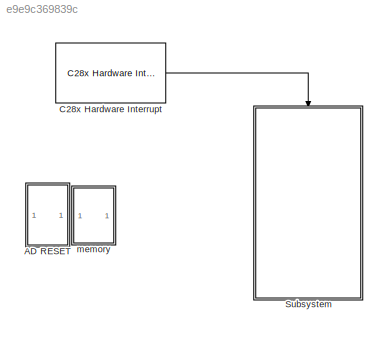
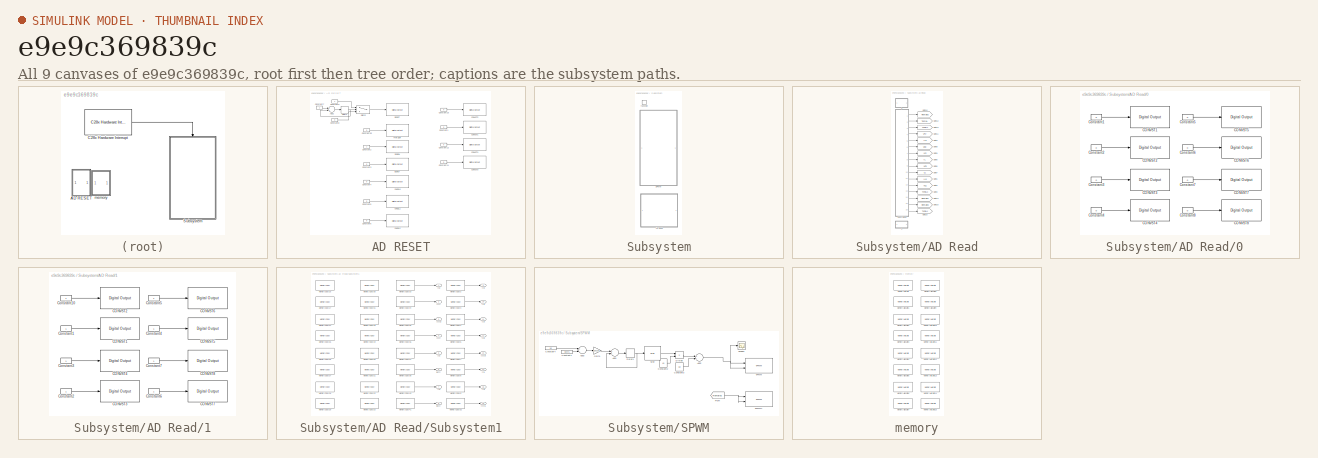
[diagram: thumbnail index - all 9 canvases of the model, root first then tree order]
MODEL slx_e9e9c369839c
KIND model
CONFIG AbsTol = auto
CONFIG EnableMultiTasking = on
CONFIG FixedStep = 1e-5
CONFIG MaxStep = auto
CONFIG MinStep = auto
CONFIG RelTol = 1e-3
CONFIG SampleTimeConstraint = Unconstrained
CONFIG Solver = FixedStepDiscrete
CONFIG SolverName = FixedStepDiscrete
CONFIG StartTime = 0.0
CONFIG StopTime = Inf
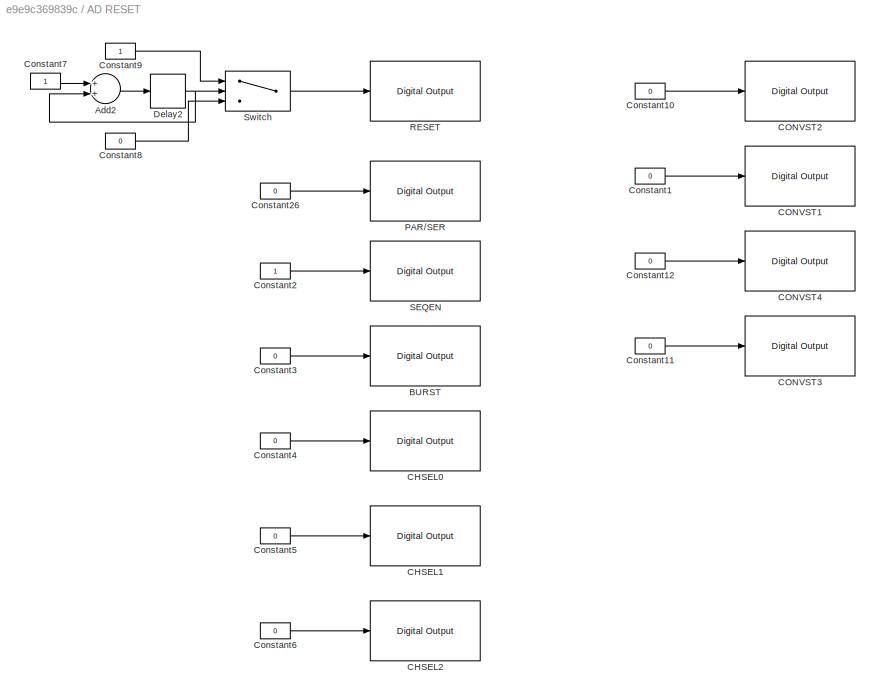
BLOCK [SubSystem] AD RESET
  Ports = []
  RequestExecContextInheritance = off
BLOCK [Sum] AD RESET/Add2
  InputSameDT = off
  OutDataTypeStr = Inherit: Inherit via internal rule
  Ports = [2, 1]
  SaturateOnIntegerOverflow = off
BLOCK [Reference] AD RESET/BURST  REF=c2837xDlib/Digital Output
  Ports = [1]
  SourceBlock = c2837xDlib/Digital Output
  SourceProductBaseCode = TIC2000
  SourceProductName = Embedded Coder Support Package for Texas Instruments C2000 Processors
  SourceType = F2837x GPIO Digital Output
  UserDataPersistent = on
BLOCK [Reference] AD RESET/CHSEL0  REF=c2837xDlib/Digital Output
  Ports = [1]
  SourceBlock = c2837xDlib/Digital Output
  SourceProductBaseCode = TIC2000
  SourceProductName = Embedded Coder Support Package for Texas Instruments C2000 Processors
  SourceType = F2837x GPIO Digital Output
  UserDataPersistent = on
BLOCK [Reference] AD RESET/CHSEL1  REF=c2837xDlib/Digital Output
  Ports = [1]
  SourceBlock = c2837xDlib/Digital Output
  SourceProductBaseCode = TIC2000
  SourceProductName = Embedded Coder Support Package for Texas Instruments C2000 Processors
  SourceType = F2837x GPIO Digital Output
  UserDataPersistent = on
BLOCK [Reference] AD RESET/CHSEL2  REF=c2837xDlib/Digital Output
  Ports = [1]
  SourceBlock = c2837xDlib/Digital Output
  SourceProductBaseCode = TIC2000
  SourceProductName = Embedded Coder Support Package for Texas Instruments C2000 Processors
  SourceType = F2837x GPIO Digital Output
  UserDataPersistent = on
BLOCK [Reference] AD RESET/CONVST1  REF=c2837xDlib/Digital Output
  Ports = [1]
  SourceBlock = c2837xDlib/Digital Output
  SourceProductBaseCode = TIC2000
  SourceProductName = Embedded Coder Support Package for Texas Instruments C2000 Processors
  SourceType = F2837x GPIO Digital Output
  UserDataPersistent = on
BLOCK [Reference] AD RESET/CONVST2  REF=c2837xDlib/Digital Output
  Ports = [1]
  SourceBlock = c2837xDlib/Digital Output
  SourceProductBaseCode = TIC2000
  SourceProductName = Embedded Coder Support Package for Texas Instruments C2000 Processors
  SourceType = F2837x GPIO Digital Output
  UserDataPersistent = on
BLOCK [Reference] AD RESET/CONVST3  REF=c2837xDlib/Digital Output
  Ports = [1]
  SourceBlock = c2837xDlib/Digital Output
  SourceProductBaseCode = TIC2000
  SourceProductName = Embedded Coder Support Package for Texas Instruments C2000 Processors
  SourceType = F2837x GPIO Digital Output
  UserDataPersistent = on
BLOCK [Reference] AD RESET/CONVST4  REF=c2837xDlib/Digital Output
  Ports = [1]
  SourceBlock = c2837xDlib/Digital Output
  SourceProductBaseCode = TIC2000
  SourceProductName = Embedded Coder Support Package for Texas Instruments C2000 Processors
  SourceType = F2837x GPIO Digital Output
  UserDataPersistent = on
BLOCK [Constant] AD RESET/Constant1
  OutDataTypeStr = boolean
  Value = 0
BLOCK [Constant] AD RESET/Constant10
  OutDataTypeStr = boolean
  Value = 0
BLOCK [Constant] AD RESET/Constant11
  OutDataTypeStr = boolean
  Value = 0
BLOCK [Constant] AD RESET/Constant12
  OutDataTypeStr = boolean
  Value = 0
BLOCK [Constant] AD RESET/Constant2
  OutDataTypeStr = boolean
BLOCK [Constant] AD RESET/Constant26
  OutDataTypeStr = boolean
  Value = 0
BLOCK [Constant] AD RESET/Constant3
  OutDataTypeStr = boolean
  Value = 0
BLOCK [Constant] AD RESET/Constant4
  OutDataTypeStr = boolean
  Value = 0
BLOCK [Constant] AD RESET/Constant5
  OutDataTypeStr = boolean
  Value = 0
BLOCK [Constant] AD RESET/Constant6
  OutDataTypeStr = boolean
  Value = 0
BLOCK [Constant] AD RESET/Constant7
  OutDataTypeStr = boolean
BLOCK [Constant] AD RESET/Constant8
  OutDataTypeStr = boolean
  Value = 0
BLOCK [Constant] AD RESET/Constant9
  OutDataTypeStr = boolean
BLOCK [Delay] AD RESET/Delay2
  DelayLength = 1
  InputPortMap = u0
  Ports = [1, 1]
BLOCK [Reference] AD RESET/PAR//SER  REF=c2837xDlib/Digital Output
  Ports = [1]
  SourceBlock = c2837xDlib/Digital Output
  SourceProductBaseCode = TIC2000
  SourceProductName = Embedded Coder Support Package for Texas Instruments C2000 Processors
  SourceType = F2837x GPIO Digital Output
  UserDataPersistent = on
BLOCK [Reference] AD RESET/RESET  REF=c2837xDlib/Digital Output
  Ports = [1]
  SourceBlock = c2837xDlib/Digital Output
  SourceProductBaseCode = TIC2000
  SourceProductName = Embedded Coder Support Package for Texas Instruments C2000 Processors
  SourceType = F2837x GPIO Digital Output
  UserDataPersistent = on
BLOCK [Reference] AD RESET/SEQEN  REF=c2837xDlib/Digital Output
  Ports = [1]
  SourceBlock = c2837xDlib/Digital Output
  SourceProductBaseCode = TIC2000
  SourceProductName = Embedded Coder Support Package for Texas Instruments C2000 Processors
  SourceType = F2837x GPIO Digital Output
  UserDataPersistent = on
BLOCK [Switch] AD RESET/Switch
  Criteria = u2 > Threshold
  InputSameDT = off
  SaturateOnIntegerOverflow = off
  Threshold = 50
BLOCK [Reference] C28x Hardware Interrupt  REF=c2000lib/Scheduling/C28x Hardware Interrupt
  Ports = [0, 1]
  SourceBlock = c2000lib/Scheduling/C28x Hardware Interrupt
  SourceProductBaseCode = TIC2000
  SourceProductName = Embedded Coder Support Package for Texas Instruments C2000 Processors
  SourceType = C28x Interrupt Block
BLOCK [SubSystem] Subsystem
  Ports = [0, 0, 0, 1]
  RequestExecContextInheritance = off
BLOCK [SubSystem] Subsystem/AD Read
  Ports = []
  RequestExecContextInheritance = off
BLOCK [SubSystem] Subsystem/AD Read/0
  Ports = []
  RequestExecContextInheritance = off
BLOCK [Reference] Subsystem/AD Read/0/CONVST1  REF=c2837xDlib/Digital Output
  Ports = [1]
  SourceBlock = c2837xDlib/Digital Output
  SourceProductBaseCode = TIC2000
  SourceProductName = Embedded Coder Support Package for Texas Instruments C2000 Processors
  SourceType = F2837x GPIO Digital Output
  UserDataPersistent = on
BLOCK [Reference] Subsystem/AD Read/0/CONVST2  REF=c2837xDlib/Digital Output
  Ports = [1]
  SourceBlock = c2837xDlib/Digital Output
  SourceProductBaseCode = TIC2000
  SourceProductName = Embedded Coder Support Package for Texas Instruments C2000 Processors
  SourceType = F2837x GPIO Digital Output
  UserDataPersistent = on
BLOCK [Reference] Subsystem/AD Read/0/CONVST3  REF=c2837xDlib/Digital Output
  Ports = [1]
  SourceBlock = c2837xDlib/Digital Output
  SourceProductBaseCode = TIC2000
  SourceProductName = Embedded Coder Support Package for Texas Instruments C2000 Processors
  SourceType = F2837x GPIO Digital Output
  UserDataPersistent = on
BLOCK [Reference] Subsystem/AD Read/0/CONVST4  REF=c2837xDlib/Digital Output
  Ports = [1]
  SourceBlock = c2837xDlib/Digital Output
  SourceProductBaseCode = TIC2000
  SourceProductName = Embedded Coder Support Package for Texas Instruments C2000 Processors
  SourceType = F2837x GPIO Digital Output
  UserDataPersistent = on
BLOCK [Reference] Subsystem/AD Read/0/CONVST5  REF=c2837xDlib/Digital Output
  Ports = [1]
  SourceBlock = c2837xDlib/Digital Output
  SourceProductBaseCode = TIC2000
  SourceProductName = Embedded Coder Support Package for Texas Instruments C2000 Processors
  SourceType = F2837x GPIO Digital Output
  UserDataPersistent = on
BLOCK [Reference] Subsystem/AD Read/0/CONVST6  REF=c2837xDlib/Digital Output
  Ports = [1]
  SourceBlock = c2837xDlib/Digital Output
  SourceProductBaseCode = TIC2000
  SourceProductName = Embedded Coder Support Package for Texas Instruments C2000 Processors
  SourceType = F2837x GPIO Digital Output
  UserDataPersistent = on
BLOCK [Reference] Subsystem/AD Read/0/CONVST7  REF=c2837xDlib/Digital Output
  Ports = [1]
  SourceBlock = c2837xDlib/Digital Output
  SourceProductBaseCode = TIC2000
  SourceProductName = Embedded Coder Support Package for Texas Instruments C2000 Processors
  SourceType = F2837x GPIO Digital Output
  UserDataPersistent = on
BLOCK [Reference] Subsystem/AD Read/0/CONVST8  REF=c2837xDlib/Digital Output
  Ports = [1]
  SourceBlock = c2837xDlib/Digital Output
  SourceProductBaseCode = TIC2000
  SourceProductName = Embedded Coder Support Package for Texas Instruments C2000 Processors
  SourceType = F2837x GPIO Digital Output
  UserDataPersistent = on
BLOCK [Constant] Subsystem/AD Read/0/Constant1
  OutDataTypeStr = boolean
  Value = 0
BLOCK [Constant] Subsystem/AD Read/0/Constant2
  OutDataTypeStr = boolean
  Value = 0
BLOCK [Constant] Subsystem/AD Read/0/Constant3
  OutDataTypeStr = boolean
  Value = 0
BLOCK [Constant] Subsystem/AD Read/0/Constant4
  OutDataTypeStr = boolean
  Value = 0
BLOCK [Constant] Subsystem/AD Read/0/Constant5
  OutDataTypeStr = boolean
  Value = 0
BLOCK [Constant] Subsystem/AD Read/0/Constant6
  OutDataTypeStr = boolean
  Value = 0
BLOCK [Constant] Subsystem/AD Read/0/Constant7
  OutDataTypeStr = boolean
  Value = 0
BLOCK [Constant] Subsystem/AD Read/0/Constant8
  OutDataTypeStr = boolean
  Value = 0
BLOCK [SubSystem] Subsystem/AD Read/1
  Ports = []
  RequestExecContextInheritance = off
BLOCK [Reference] Subsystem/AD Read/1/CONVST1  REF=c2837xDlib/Digital Output
  Ports = [1]
  SourceBlock = c2837xDlib/Digital Output
  SourceProductBaseCode = TIC2000
  SourceProductName = Embedded Coder Support Package for Texas Instruments C2000 Processors
  SourceType = F2837x GPIO Digital Output
  UserDataPersistent = on
BLOCK [Reference] Subsystem/AD Read/1/CONVST2  REF=c2837xDlib/Digital Output
  Ports = [1]
  SourceBlock = c2837xDlib/Digital Output
  SourceProductBaseCode = TIC2000
  SourceProductName = Embedded Coder Support Package for Texas Instruments C2000 Processors
  SourceType = F2837x GPIO Digital Output
  UserDataPersistent = on
BLOCK [Reference] Subsystem/AD Read/1/CONVST3  REF=c2837xDlib/Digital Output
  Ports = [1]
  SourceBlock = c2837xDlib/Digital Output
  SourceProductBaseCode = TIC2000
  SourceProductName = Embedded Coder Support Package for Texas Instruments C2000 Processors
  SourceType = F2837x GPIO Digital Output
  UserDataPersistent = on
BLOCK [Reference] Subsystem/AD Read/1/CONVST4  REF=c2837xDlib/Digital Output
  Ports = [1]
  SourceBlock = c2837xDlib/Digital Output
  SourceProductBaseCode = TIC2000
  SourceProductName = Embedded Coder Support Package for Texas Instruments C2000 Processors
  SourceType = F2837x GPIO Digital Output
  UserDataPersistent = on
BLOCK [Reference] Subsystem/AD Read/1/CONVST5  REF=c2837xDlib/Digital Output
  Ports = [1]
  SourceBlock = c2837xDlib/Digital Output
  SourceProductBaseCode = TIC2000
  SourceProductName = Embedded Coder Support Package for Texas Instruments C2000 Processors
  SourceType = F2837x GPIO Digital Output
  UserDataPersistent = on
BLOCK [Reference] Subsystem/AD Read/1/CONVST6  REF=c2837xDlib/Digital Output
  Ports = [1]
  SourceBlock = c2837xDlib/Digital Output
  SourceProductBaseCode = TIC2000
  SourceProductName = Embedded Coder Support Package for Texas Instruments C2000 Processors
  SourceType = F2837x GPIO Digital Output
  UserDataPersistent = on
BLOCK [Reference] Subsystem/AD Read/1/CONVST7  REF=c2837xDlib/Digital Output
  Ports = [1]
  SourceBlock = c2837xDlib/Digital Output
  SourceProductBaseCode = TIC2000
  SourceProductName = Embedded Coder Support Package for Texas Instruments C2000 Processors
  SourceType = F2837x GPIO Digital Output
  UserDataPersistent = on
BLOCK [Reference] Subsystem/AD Read/1/CONVST8  REF=c2837xDlib/Digital Output
  Ports = [1]
  SourceBlock = c2837xDlib/Digital Output
  SourceProductBaseCode = TIC2000
  SourceProductName = Embedded Coder Support Package for Texas Instruments C2000 Processors
  SourceType = F2837x GPIO Digital Output
  UserDataPersistent = on
BLOCK [Constant] Subsystem/AD Read/1/Constant1
  OutDataTypeStr = boolean
BLOCK [Constant] Subsystem/AD Read/1/Constant10
  OutDataTypeStr = boolean
BLOCK [Constant] Subsystem/AD Read/1/Constant2
  OutDataTypeStr = boolean
BLOCK [Constant] Subsystem/AD Read/1/Constant3
  OutDataTypeStr = boolean
BLOCK [Constant] Subsystem/AD Read/1/Constant4
  OutDataTypeStr = boolean
BLOCK [Constant] Subsystem/AD Read/1/Constant5
  OutDataTypeStr = boolean
BLOCK [Constant] Subsystem/AD Read/1/Constant6
  OutDataTypeStr = boolean
BLOCK [Constant] Subsystem/AD Read/1/Constant7
  OutDataTypeStr = boolean
BLOCK [Goto] Subsystem/AD Read/Goto1
  GotoTag = IL3
BLOCK [Goto] Subsystem/AD Read/Goto10
  GotoTag = Remain2
BLOCK [Goto] Subsystem/AD Read/Goto11
  GotoTag = VPV
BLOCK [Goto] Subsystem/AD Read/Goto12
  GotoTag = TempL
BLOCK [Goto] Subsystem/AD Read/Goto13
  GotoTag = TempL2
BLOCK [Goto] Subsystem/AD Read/Goto14
  GotoTag = Remain1
BLOCK [Goto] Subsystem/AD Read/Goto15
  GotoTag = Remain3
BLOCK [Goto] Subsystem/AD Read/Goto16
  GotoTag = TempL1
BLOCK [Goto] Subsystem/AD Read/Goto2
  GotoTag = VC1
BLOCK [Goto] Subsystem/AD Read/Goto3
  GotoTag = TempL3
BLOCK [Goto] Subsystem/AD Read/Goto4
  GotoTag = IL2
BLOCK [Goto] Subsystem/AD Read/Goto5
  GotoTag = IL
BLOCK [Goto] Subsystem/AD Read/Goto6
  GotoTag = VC3
BLOCK [Goto] Subsystem/AD Read/Goto7
  GotoTag = IL1
BLOCK [Goto] Subsystem/AD Read/Goto8
  GotoTag = VDC
BLOCK [Goto] Subsystem/AD Read/Goto9
  GotoTag = VC2
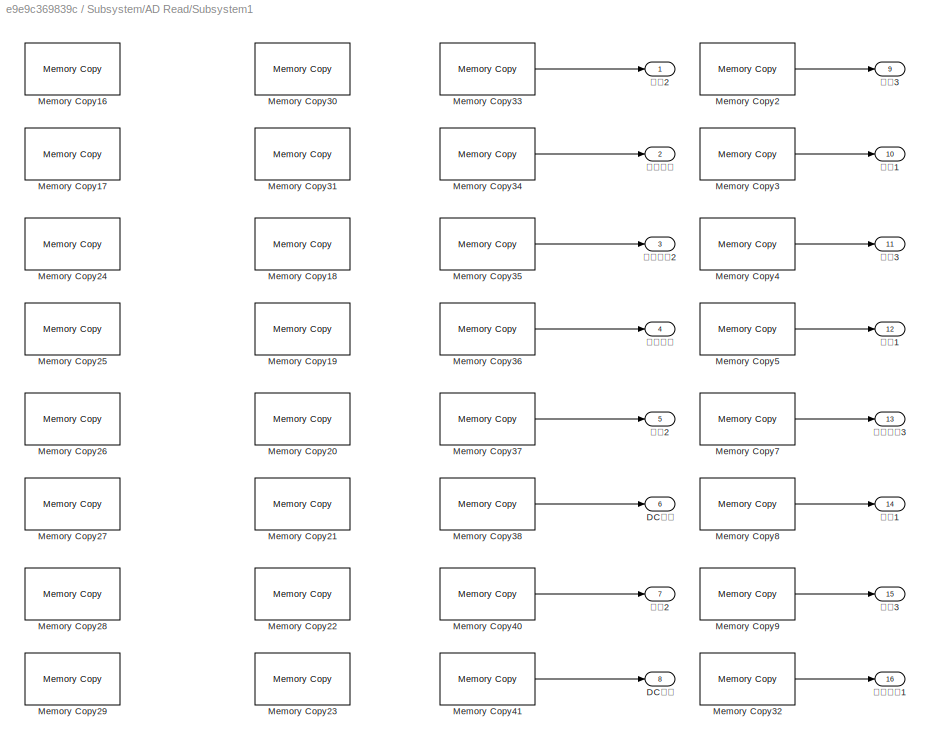
BLOCK [SubSystem] Subsystem/AD Read/Subsystem1
  Ports = [0, 16]
  RequestExecContextInheritance = off
BLOCK [Outport] Subsystem/AD Read/Subsystem1/DC电压
  IconDisplay = Port number
  Port = 6
BLOCK [Outport] Subsystem/AD Read/Subsystem1/DC电流
  IconDisplay = Port number
  Port = 8
BLOCK [Reference] Subsystem/AD Read/Subsystem1/Memory Copy16  REF=idelinklib_common/Memory Copy
  Ports = []
  SourceBlock = idelinklib_common/Memory Copy
  SourceType = Memory Copy
BLOCK [Reference] Subsystem/AD Read/Subsystem1/Memory Copy17  REF=idelinklib_common/Memory Copy
  Ports = []
  SourceBlock = idelinklib_common/Memory Copy
  SourceType = Memory Copy
BLOCK [Reference] Subsystem/AD Read/Subsystem1/Memory Copy18  REF=idelinklib_common/Memory Copy
  Ports = []
  SourceBlock = idelinklib_common/Memory Copy
  SourceType = Memory Copy
BLOCK [Reference] Subsystem/AD Read/Subsystem1/Memory Copy19  REF=idelinklib_common/Memory Copy
  Ports = []
  SourceBlock = idelinklib_common/Memory Copy
  SourceType = Memory Copy
BLOCK [Reference] Subsystem/AD Read/Subsystem1/Memory Copy2  REF=idelinklib_common/Memory Copy
  Ports = [0, 1]
  SourceBlock = idelinklib_common/Memory Copy
  SourceType = Memory Copy
BLOCK [Reference] Subsystem/AD Read/Subsystem1/Memory Copy20  REF=idelinklib_common/Memory Copy
  Ports = []
  SourceBlock = idelinklib_common/Memory Copy
  SourceType = Memory Copy
BLOCK [Reference] Subsystem/AD Read/Subsystem1/Memory Copy21  REF=idelinklib_common/Memory Copy
  Ports = []
  SourceBlock = idelinklib_common/Memory Copy
  SourceType = Memory Copy
BLOCK [Reference] Subsystem/AD Read/Subsystem1/Memory Copy22  REF=idelinklib_common/Memory Copy
  Ports = []
  SourceBlock = idelinklib_common/Memory Copy
  SourceType = Memory Copy
BLOCK [Reference] Subsystem/AD Read/Subsystem1/Memory Copy23  REF=idelinklib_common/Memory Copy
  Ports = []
  SourceBlock = idelinklib_common/Memory Copy
  SourceType = Memory Copy
BLOCK [Reference] Subsystem/AD Read/Subsystem1/Memory Copy24  REF=idelinklib_common/Memory Copy
  Ports = []
  SourceBlock = idelinklib_common/Memory Copy
  SourceType = Memory Copy
BLOCK [Reference] Subsystem/AD Read/Subsystem1/Memory Copy25  REF=idelinklib_common/Memory Copy
  Ports = []
  SourceBlock = idelinklib_common/Memory Copy
  SourceType = Memory Copy
BLOCK [Reference] Subsystem/AD Read/Subsystem1/Memory Copy26  REF=idelinklib_common/Memory Copy
  Ports = []
  SourceBlock = idelinklib_common/Memory Copy
  SourceType = Memory Copy
BLOCK [Reference] Subsystem/AD Read/Subsystem1/Memory Copy27  REF=idelinklib_common/Memory Copy
  Ports = []
  SourceBlock = idelinklib_common/Memory Copy
  SourceType = Memory Copy
BLOCK [Reference] Subsystem/AD Read/Subsystem1/Memory Copy28  REF=idelinklib_common/Memory Copy
  Ports = []
  SourceBlock = idelinklib_common/Memory Copy
  SourceType = Memory Copy
BLOCK [Reference] Subsystem/AD Read/Subsystem1/Memory Copy29  REF=idelinklib_common/Memory Copy
  Ports = []
  SourceBlock = idelinklib_common/Memory Copy
  SourceType = Memory Copy
BLOCK [Reference] Subsystem/AD Read/Subsystem1/Memory Copy3  REF=idelinklib_common/Memory Copy
  Ports = [0, 1]
  SourceBlock = idelinklib_common/Memory Copy
  SourceType = Memory Copy
BLOCK [Reference] Subsystem/AD Read/Subsystem1/Memory Copy30  REF=idelinklib_common/Memory Copy
  Ports = []
  SourceBlock = idelinklib_common/Memory Copy
  SourceType = Memory Copy
BLOCK [Reference] Subsystem/AD Read/Subsystem1/Memory Copy31  REF=idelinklib_common/Memory Copy
  Ports = []
  SourceBlock = idelinklib_common/Memory Copy
  SourceType = Memory Copy
BLOCK [Reference] Subsystem/AD Read/Subsystem1/Memory Copy32  REF=idelinklib_common/Memory Copy
  Ports = [0, 1]
  SourceBlock = idelinklib_common/Memory Copy
  SourceType = Memory Copy
BLOCK [Reference] Subsystem/AD Read/Subsystem1/Memory Copy33  REF=idelinklib_common/Memory Copy
  Ports = [0, 1]
  SourceBlock = idelinklib_common/Memory Copy
  SourceType = Memory Copy
BLOCK [Reference] Subsystem/AD Read/Subsystem1/Memory Copy34  REF=idelinklib_common/Memory Copy
  Ports = [0, 1]
  SourceBlock = idelinklib_common/Memory Copy
  SourceType = Memory Copy
BLOCK [Reference] Subsystem/AD Read/Subsystem1/Memory Copy35  REF=idelinklib_common/Memory Copy
  Ports = [0, 1]
  SourceBlock = idelinklib_common/Memory Copy
  SourceType = Memory Copy
BLOCK [Reference] Subsystem/AD Read/Subsystem1/Memory Copy36  REF=idelinklib_common/Memory Copy
  Ports = [0, 1]
  SourceBlock = idelinklib_common/Memory Copy
  SourceType = Memory Copy
BLOCK [Reference] Subsystem/AD Read/Subsystem1/Memory Copy37  REF=idelinklib_common/Memory Copy
  Ports = [0, 1]
  SourceBlock = idelinklib_common/Memory Copy
  SourceType = Memory Copy
BLOCK [Reference] Subsystem/AD Read/Subsystem1/Memory Copy38  REF=idelinklib_common/Memory Copy
  Ports = [0, 1]
  SourceBlock = idelinklib_common/Memory Copy
  SourceType = Memory Copy
BLOCK [Reference] Subsystem/AD Read/Subsystem1/Memory Copy4  REF=idelinklib_common/Memory Copy
  Ports = [0, 1]
  SourceBlock = idelinklib_common/Memory Copy
  SourceType = Memory Copy
BLOCK [Reference] Subsystem/AD Read/Subsystem1/Memory Copy40  REF=idelinklib_common/Memory Copy
  Ports = [0, 1]
  SourceBlock = idelinklib_common/Memory Copy
  SourceType = Memory Copy
BLOCK [Reference] Subsystem/AD Read/Subsystem1/Memory Copy41  REF=idelinklib_common/Memory Copy
  Ports = [0, 1]
  SourceBlock = idelinklib_common/Memory Copy
  SourceType = Memory Copy
BLOCK [Reference] Subsystem/AD Read/Subsystem1/Memory Copy5  REF=idelinklib_common/Memory Copy
  Ports = [0, 1]
  SourceBlock = idelinklib_common/Memory Copy
  SourceType = Memory Copy
BLOCK [Reference] Subsystem/AD Read/Subsystem1/Memory Copy7  REF=idelinklib_common/Memory Copy
  Ports = [0, 1]
  SourceBlock = idelinklib_common/Memory Copy
  SourceType = Memory Copy
BLOCK [Reference] Subsystem/AD Read/Subsystem1/Memory Copy8  REF=idelinklib_common/Memory Copy
  Ports = [0, 1]
  SourceBlock = idelinklib_common/Memory Copy
  SourceType = Memory Copy
BLOCK [Reference] Subsystem/AD Read/Subsystem1/Memory Copy9  REF=idelinklib_common/Memory Copy
  Ports = [0, 1]
  SourceBlock = idelinklib_common/Memory Copy
  SourceType = Memory Copy
BLOCK [Outport] Subsystem/AD Read/Subsystem1/保留1
  IconDisplay = Port number
  Port = 14
BLOCK [Outport] Subsystem/AD Read/Subsystem1/保留2
  IconDisplay = Port number
BLOCK [Outport] Subsystem/AD Read/Subsystem1/保留3
  IconDisplay = Port number
  Port = 15
BLOCK [Outport] Subsystem/AD Read/Subsystem1/光伏电压
  IconDisplay = Port number
  Port = 4
BLOCK [Outport] Subsystem/AD Read/Subsystem1/电压1
  IconDisplay = Port number
  Port = 12
BLOCK [Outport] Subsystem/AD Read/Subsystem1/电压2
  IconDisplay = Port number
  Port = 7
BLOCK [Outport] Subsystem/AD Read/Subsystem1/电压3
  IconDisplay = Port number
  Port = 9
BLOCK [Outport] Subsystem/AD Read/Subsystem1/电感温度
  IconDisplay = Port number
  Port = 2
BLOCK [Outport] Subsystem/AD Read/Subsystem1/电感温度1
  IconDisplay = Port number
  Port = 16
BLOCK [Outport] Subsystem/AD Read/Subsystem1/电感温度2
  IconDisplay = Port number
  Port = 3
BLOCK [Outport] Subsystem/AD Read/Subsystem1/电感温度3
  IconDisplay = Port number
  Port = 13
BLOCK [Outport] Subsystem/AD Read/Subsystem1/电流1
  IconDisplay = Port number
  Port = 10
BLOCK [Outport] Subsystem/AD Read/Subsystem1/电流2
  IconDisplay = Port number
  Port = 5
BLOCK [Outport] Subsystem/AD Read/Subsystem1/电流3
  IconDisplay = Port number
  Port = 11
BLOCK [SubSystem] Subsystem/SPWM
  Ports = []
  RequestExecContextInheritance = off
BLOCK [Sum] Subsystem/SPWM/Add1
  InputSameDT = off
  OutDataTypeStr = Inherit: Inherit via internal rule
  Ports = [2, 1]
  SaturateOnIntegerOverflow = off
BLOCK [Sum] Subsystem/SPWM/Add2
  InputSameDT = off
  OutDataTypeStr = Inherit: Inherit via internal rule
  Ports = [2, 1]
  SaturateOnIntegerOverflow = off
BLOCK [Sum] Subsystem/SPWM/Add3
  InputSameDT = off
  Inputs = +-
  OutDataTypeStr = Inherit: Inherit via internal rule
  Ports = [2, 1]
  SaturateOnIntegerOverflow = off
BLOCK [Constant] Subsystem/SPWM/Constant1
  Value = 0.0471
  VectorParams1D = off
BLOCK [Constant] Subsystem/SPWM/Constant2
  Value = 40
  VectorParams1D = off
BLOCK [Constant] Subsystem/SPWM/Constant3
  Value = 50
  VectorParams1D = off
BLOCK [Constant] Subsystem/SPWM/Constant4
  Value = 50
  VectorParams1D = off
BLOCK [Delay] Subsystem/SPWM/Delay1
  DelayLength = 1
  InputPortMap = u0
  Ports = [1, 1]
BLOCK [Product] Subsystem/SPWM/Divide
  InputSameDT = off
  Inputs = **
  OutDataTypeStr = Inherit: Inherit via internal rule
  Ports = [2, 1]
  RndMeth = Floor
  SaturateOnIntegerOverflow = off
BLOCK [From] Subsystem/SPWM/From
  GotoTag = Remain2
BLOCK [Gain] Subsystem/SPWM/Gain1
  Gain = 1/3316.4
  OutDataTypeStr = Inherit: Inherit via internal rule
  ParamDataTypeStr = Inherit: Inherit via internal rule
  SaturateOnIntegerOverflow = off
BLOCK [Scope] Subsystem/SPWM/Scope1
  Floating = off
  NumInputPorts = 1
  Ports = [1]
  ScopeSpecificationString = Simulink.scopes.TimeScopeBlockCfg('CurrentConfiguration', extmgr.ConfigurationSet(extmgr.Configuration('Core','General UI',true),extmgr.Configuration('Core','Source UI',true),extmgr.Configuration('Sources','WiredSimulink',true,'DataLoggingVariableName','ScopeData1'),extmgr.Configuration('Visuals','Time Domain',true,'SerializedDisplays',{struct('MinYLimReal','0.00000','MaxYLimReal','100.00000','YLa...<+1471ch>
BLOCK [Reference] Subsystem/SPWM/Sine  REF=simulink/Lookup
Tables/Sine
  Ports = [1, 1]
  SourceBlock = simulink/Lookup\nTables/Sine
  SourceProductBaseCode = SL
  SourceProductName = Simulink
  SourceType = Sine and Cosine
BLOCK [Reference] Subsystem/SPWM/ePWM  REF=c2802xlib/ePWM
  Ports = [2]
  SourceBlock = c2802xlib/ePWM
  SourceProductBaseCode = TIC2000
  SourceProductName = Embedded Coder Support Package for Texas Instruments C2000 Processors
  SourceType = C2802x/03x/05x/06x/M3x/37x/07x/004x ePWM
  UserDataPersistent = on
BLOCK [Reference] Subsystem/SPWM/ePWM1  REF=c2802xlib/ePWM
  Ports = [2]
  SourceBlock = c2802xlib/ePWM
  SourceProductBaseCode = TIC2000
  SourceProductName = Embedded Coder Support Package for Texas Instruments C2000 Processors
  SourceType = C2802x/03x/05x/06x/M3x/37x/07x/004x ePWM
  UserDataPersistent = on
BLOCK [TriggerPort] Subsystem/function
  Ports = []
  SampleTime = 1e-5
  StatesWhenEnabling = held
  TriggerType = function-call
  VariantControl = (inherit)
BLOCK [SubSystem] memory
  Ports = []
  RequestExecContextInheritance = off
BLOCK [Reference] memory/Memory Allocate  REF=idelinklib_common/Memory Allocate
  Ports = []
  SourceBlock = idelinklib_common/Memory Allocate
  SourceType = Memory Allocate
BLOCK [Reference] memory/Memory Allocate1  REF=idelinklib_common/Memory Allocate
  Ports = []
  SourceBlock = idelinklib_common/Memory Allocate
  SourceType = Memory Allocate
BLOCK [Reference] memory/Memory Allocate10  REF=idelinklib_common/Memory Allocate
  Ports = []
  SourceBlock = idelinklib_common/Memory Allocate
  SourceType = Memory Allocate
BLOCK [Reference] memory/Memory Allocate11  REF=idelinklib_common/Memory Allocate
  Ports = []
  SourceBlock = idelinklib_common/Memory Allocate
  SourceType = Memory Allocate
BLOCK [Reference] memory/Memory Allocate12  REF=idelinklib_common/Memory Allocate
  Ports = []
  SourceBlock = idelinklib_common/Memory Allocate
  SourceType = Memory Allocate
BLOCK [Reference] memory/Memory Allocate13  REF=idelinklib_common/Memory Allocate
  Ports = []
  SourceBlock = idelinklib_common/Memory Allocate
  SourceType = Memory Allocate
BLOCK [Reference] memory/Memory Allocate14  REF=idelinklib_common/Memory Allocate
  Ports = []
  SourceBlock = idelinklib_common/Memory Allocate
  SourceType = Memory Allocate
BLOCK [Reference] memory/Memory Allocate15  REF=idelinklib_common/Memory Allocate
  Ports = []
  SourceBlock = idelinklib_common/Memory Allocate
  SourceType = Memory Allocate
BLOCK [Reference] memory/Memory Allocate2  REF=idelinklib_common/Memory Allocate
  Ports = []
  SourceBlock = idelinklib_common/Memory Allocate
  SourceType = Memory Allocate
BLOCK [Reference] memory/Memory Allocate3  REF=idelinklib_common/Memory Allocate
  Ports = []
  SourceBlock = idelinklib_common/Memory Allocate
  SourceType = Memory Allocate
BLOCK [Reference] memory/Memory Allocate4  REF=idelinklib_common/Memory Allocate
  Ports = []
  SourceBlock = idelinklib_common/Memory Allocate
  SourceType = Memory Allocate
BLOCK [Reference] memory/Memory Allocate5  REF=idelinklib_common/Memory Allocate
  Ports = []
  SourceBlock = idelinklib_common/Memory Allocate
  SourceType = Memory Allocate
BLOCK [Reference] memory/Memory Allocate6  REF=idelinklib_common/Memory Allocate
  Ports = []
  SourceBlock = idelinklib_common/Memory Allocate
  SourceType = Memory Allocate
BLOCK [Reference] memory/Memory Allocate7  REF=idelinklib_common/Memory Allocate
  Ports = []
  SourceBlock = idelinklib_common/Memory Allocate
  SourceType = Memory Allocate
BLOCK [Reference] memory/Memory Allocate8  REF=idelinklib_common/Memory Allocate
  Ports = []
  SourceBlock = idelinklib_common/Memory Allocate
  SourceType = Memory Allocate
BLOCK [Reference] memory/Memory Allocate9  REF=idelinklib_common/Memory Allocate
  Ports = []
  SourceBlock = idelinklib_common/Memory Allocate
  SourceType = Memory Allocate
LINE AD RESET/Add2:1 -> AD RESET/Delay2:1
LINE AD RESET/Constant10:1 -> AD RESET/CONVST2:1
LINE AD RESET/Constant11:1 -> AD RESET/CONVST3:1
LINE AD RESET/Constant12:1 -> AD RESET/CONVST4:1
LINE AD RESET/Constant1:1 -> AD RESET/CONVST1:1
LINE AD RESET/Constant26:1 -> AD RESET/PAR//SER:1
LINE AD RESET/Constant2:1 -> AD RESET/SEQEN:1
LINE AD RESET/Constant3:1 -> AD RESET/BURST:1
LINE AD RESET/Constant4:1 -> AD RESET/CHSEL0:1
LINE AD RESET/Constant5:1 -> AD RESET/CHSEL1:1
LINE AD RESET/Constant6:1 -> AD RESET/CHSEL2:1
LINE AD RESET/Constant7:1 -> AD RESET/Add2:1
LINE AD RESET/Constant8:1 -> AD RESET/Switch:3
LINE AD RESET/Constant9:1 -> AD RESET/Switch:1
NET AD RESET/Delay2:1 -> AD RESET/Add2:2, AD RESET/Switch:2
LINE AD RESET/Switch:1 -> AD RESET/RESET:1
LINE C28x Hardware Interrupt:1 -> Subsystem:trigger
LINE Subsystem/AD Read/0/Constant1:1 -> Subsystem/AD Read/0/CONVST1:1
LINE Subsystem/AD Read/0/Constant2:1 -> Subsystem/AD Read/0/CONVST2:1
LINE Subsystem/AD Read/0/Constant3:1 -> Subsystem/AD Read/0/CONVST3:1
LINE Subsystem/AD Read/0/Constant4:1 -> Subsystem/AD Read/0/CONVST4:1
LINE Subsystem/AD Read/0/Constant5:1 -> Subsystem/AD Read/0/CONVST5:1
LINE Subsystem/AD Read/0/Constant6:1 -> Subsystem/AD Read/0/CONVST6:1
LINE Subsystem/AD Read/0/Constant7:1 -> Subsystem/AD Read/0/CONVST7:1
LINE Subsystem/AD Read/0/Constant8:1 -> Subsystem/AD Read/0/CONVST8:1
LINE Subsystem/AD Read/1/Constant10:1 -> Subsystem/AD Read/1/CONVST2:1
LINE Subsystem/AD Read/1/Constant1:1 -> Subsystem/AD Read/1/CONVST1:1
LINE Subsystem/AD Read/1/Constant2:1 -> Subsystem/AD Read/1/CONVST3:1
LINE Subsystem/AD Read/1/Constant3:1 -> Subsystem/AD Read/1/CONVST4:1
LINE Subsystem/AD Read/1/Constant4:1 -> Subsystem/AD Read/1/CONVST5:1
LINE Subsystem/AD Read/1/Constant5:1 -> Subsystem/AD Read/1/CONVST6:1
LINE Subsystem/AD Read/1/Constant6:1 -> Subsystem/AD Read/1/CONVST7:1
LINE Subsystem/AD Read/1/Constant7:1 -> Subsystem/AD Read/1/CONVST8:1
LINE Subsystem/AD Read/Subsystem1/Memory Copy2:1 -> Subsystem/AD Read/Subsystem1/电压3:1
LINE Subsystem/AD Read/Subsystem1/Memory Copy32:1 -> Subsystem/AD Read/Subsystem1/电感温度1:1
LINE Subsystem/AD Read/Subsystem1/Memory Copy33:1 -> Subsystem/AD Read/Subsystem1/保留2:1
LINE Subsystem/AD Read/Subsystem1/Memory Copy34:1 -> Subsystem/AD Read/Subsystem1/电感温度:1
LINE Subsystem/AD Read/Subsystem1/Memory Copy35:1 -> Subsystem/AD Read/Subsystem1/电感温度2:1
LINE Subsystem/AD Read/Subsystem1/Memory Copy36:1 -> Subsystem/AD Read/Subsystem1/光伏电压:1
LINE Subsystem/AD Read/Subsystem1/Memory Copy37:1 -> Subsystem/AD Read/Subsystem1/电流2:1
LINE Subsystem/AD Read/Subsystem1/Memory Copy38:1 -> Subsystem/AD Read/Subsystem1/DC电压:1
LINE Subsystem/AD Read/Subsystem1/Memory Copy3:1 -> Subsystem/AD Read/Subsystem1/电流1:1
LINE Subsystem/AD Read/Subsystem1/Memory Copy40:1 -> Subsystem/AD Read/Subsystem1/电压2:1
LINE Subsystem/AD Read/Subsystem1/Memory Copy41:1 -> Subsystem/AD Read/Subsystem1/DC电流:1
LINE Subsystem/AD Read/Subsystem1/Memory Copy4:1 -> Subsystem/AD Read/Subsystem1/电流3:1
LINE Subsystem/AD Read/Subsystem1/Memory Copy5:1 -> Subsystem/AD Read/Subsystem1/电压1:1
LINE Subsystem/AD Read/Subsystem1/Memory Copy7:1 -> Subsystem/AD Read/Subsystem1/电感温度3:1
LINE Subsystem/AD Read/Subsystem1/Memory Copy8:1 -> Subsystem/AD Read/Subsystem1/保留1:1
LINE Subsystem/AD Read/Subsystem1/Memory Copy9:1 -> Subsystem/AD Read/Subsystem1/保留3:1
LINE Subsystem/AD Read/Subsystem1:1 -> Subsystem/AD Read/Goto10:1
LINE Subsystem/AD Read/Subsystem1:10 -> Subsystem/AD Read/Goto7:1
LINE Subsystem/AD Read/Subsystem1:11 -> Subsystem/AD Read/Goto1:1
LINE Subsystem/AD Read/Subsystem1:12 -> Subsystem/AD Read/Goto2:1
LINE Subsystem/AD Read/Subsystem1:13 -> Subsystem/AD Read/Goto3:1
LINE Subsystem/AD Read/Subsystem1:14 -> Subsystem/AD Read/Goto14:1
LINE Subsystem/AD Read/Subsystem1:15 -> Subsystem/AD Read/Goto15:1
LINE Subsystem/AD Read/Subsystem1:16 -> Subsystem/AD Read/Goto16:1
LINE Subsystem/AD Read/Subsystem1:2 -> Subsystem/AD Read/Goto12:1
LINE Subsystem/AD Read/Subsystem1:3 -> Subsystem/AD Read/Goto13:1
LINE Subsystem/AD Read/Subsystem1:4 -> Subsystem/AD Read/Goto11:1
LINE Subsystem/AD Read/Subsystem1:5 -> Subsystem/AD Read/Goto4:1
LINE Subsystem/AD Read/Subsystem1:6 -> Subsystem/AD Read/Goto8:1
LINE Subsystem/AD Read/Subsystem1:7 -> Subsystem/AD Read/Goto9:1
LINE Subsystem/AD Read/Subsystem1:8 -> Subsystem/AD Read/Goto5:1
LINE Subsystem/AD Read/Subsystem1:9 -> Subsystem/AD Read/Goto6:1
LINE Subsystem/SPWM/Add1:1 -> Subsystem/SPWM/Delay1:1
NET Subsystem/SPWM/Add2:1 -> Subsystem/SPWM/Scope1:1, Subsystem/SPWM/ePWM:1, Subsystem/SPWM/ePWM:2
LINE Subsystem/SPWM/Add3:1 -> Subsystem/SPWM/Gain1:1
LINE Subsystem/SPWM/Constant1:1 -> Subsystem/SPWM/Add3:2
LINE Subsystem/SPWM/Constant2:1 -> Subsystem/SPWM/Divide:2
LINE Subsystem/SPWM/Constant3:1 -> Subsystem/SPWM/Add2:2
LINE Subsystem/SPWM/Constant4:1 -> Subsystem/SPWM/Add3:1
NET Subsystem/SPWM/Delay1:1 -> Subsystem/SPWM/Add1:2, Subsystem/SPWM/Sine:1
LINE Subsystem/SPWM/Divide:1 -> Subsystem/SPWM/Add2:1
NET Subsystem/SPWM/From:1 -> Subsystem/SPWM/ePWM1:1, Subsystem/SPWM/ePWM1:2
LINE Subsystem/SPWM/Gain1:1 -> Subsystem/SPWM/Add1:1
LINE Subsystem/SPWM/Sine:1 -> Subsystem/SPWM/Divide:1
note: NET lines group one-source signal fan-out (src -> all destinations, sorted); 1:1 wires keep LINE
